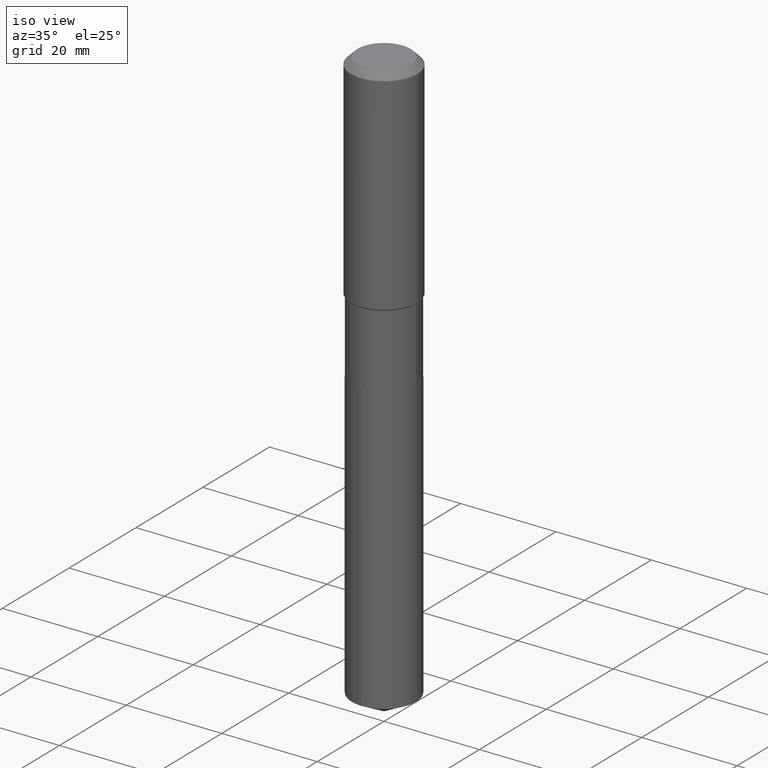
[diagram: clean part render]
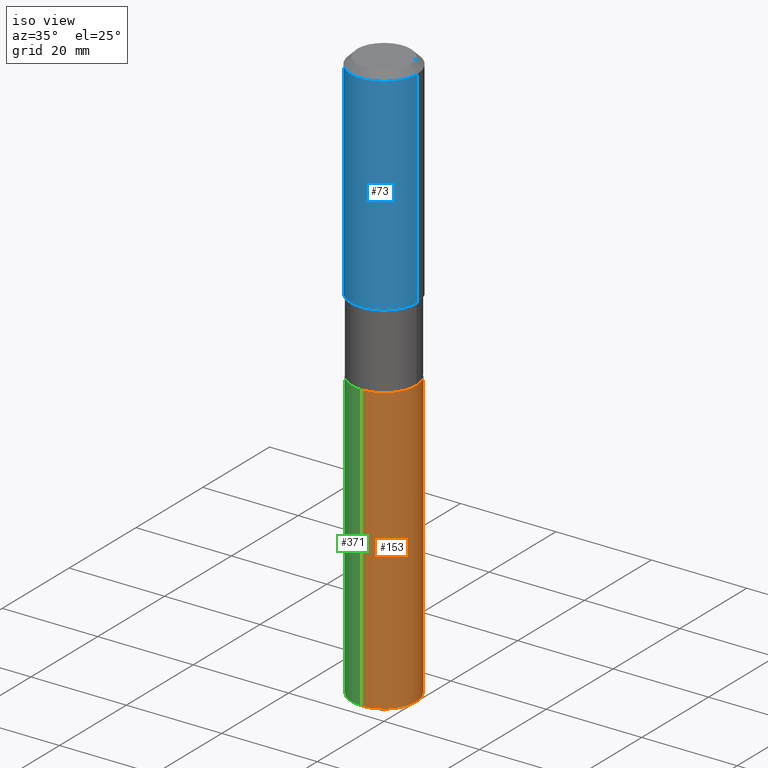
[diagram: same view with three faces highlighted in distinct colors, each labeled with its STEP entity id]
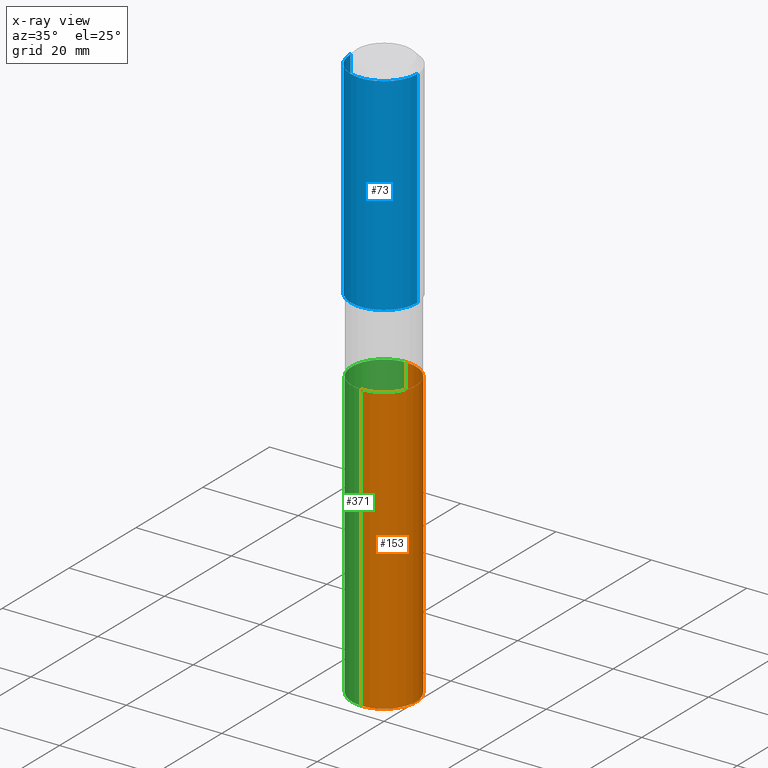
[diagram: x-ray of the same camera — body ghosted, the three highlighted faces saturated]
A machine part, iso view with three faces highlighted in distinct colors.
The next image is the same camera in x-ray (body ghosted, the three faces saturated) — at least one of them is partly hidden behind the body in this view.
Their STEP definitions:

[orange] entity #153 — the highlighted cylindrical surface (partial cylindrical patch) has radius 6.75 mm, axis along (-0, 0, 1).
#20 = DIRECTION ( 'NONE',  ( -6.982962677686266711E-15, -1.000000000000000000, 3.083930002255048040E-15 ) ) ;
#36 = EDGE_CURVE ( 'NONE', #176, #209, #388, .T. ) ;
#52 = DIRECTION ( 'NONE',  ( -2.445196029455757916E-29, 3.491871970645102957E-15, 1.000000000000000000 ) ) ;
#54 = ORIENTED_EDGE ( 'NONE', *, *, #395, .T. ) ;
#61 = CARTESIAN_POINT ( 'NONE',  ( 5.824862149452375369E-29, -8.316359400990487656E-15, -2.381899999999999462 ) ) ;
#85 = AXIS2_PLACEMENT_3D ( 'NONE', #348, #363, #20 ) ;
#88 = DIRECTION ( 'NONE',  ( -2.445196029455757916E-29, 3.491871970645102957E-15, 1.000000000000000000 ) ) ;
#94 = CARTESIAN_POINT ( 'NONE',  ( 1.888267320282524127E-15, 0.2657499999999916596, -2.381900000000000350 ) ) ;
#118 = CYLINDRICAL_SURFACE ( 'NONE', #85, 0.2657499999999999862 ) ;
#119 = AXIS2_PLACEMENT_3D ( 'NONE', #194, #253, #392 ) ;
#150 = FACE_OUTER_BOUND ( 'NONE', #456, .T. ) ;
#153 = ADVANCED_FACE ( 'NONE', ( #150 ), #118, .T. ) ;
#168 = DIRECTION ( 'NONE',  ( -2.445196029455757916E-29, 3.491871970645102957E-15, 1.000000000000000000 ) ) ;
#175 = CARTESIAN_POINT ( 'NONE',  ( 1.888267320282582503E-15, 0.2657499999999916596, -2.381900000000000350 ) ) ;
#176 = VERTEX_POINT ( 'NONE', #278 ) ;
#186 = VECTOR ( 'NONE', #168, 39.37007874015748143 ) ;
#194 = CARTESIAN_POINT ( 'NONE',  ( 1.159234166810088116E-28, -1.655263159750675683E-14, -4.740598218535962971 ) ) ;
#202 = CARTESIAN_POINT ( 'NONE',  ( -1.855722331595066971E-15, -0.2657500000000083129, -2.381899999999998574 ) ) ;
#209 = VERTEX_POINT ( 'NONE', #355 ) ;
#232 = EDGE_CURVE ( 'NONE', #287, #242, #314, .T. ) ;
#240 = ORIENTED_EDGE ( 'NONE', *, *, #352, .F. ) ;
#242 = VERTEX_POINT ( 'NONE', #175 ) ;
#253 = DIRECTION ( 'NONE',  ( -2.445196029455757916E-29, 3.491871970645102957E-15, 1.000000000000000000 ) ) ;
#271 = CARTESIAN_POINT ( 'NONE',  ( -1.855722331595066971E-15, -0.2657500000000083129, -2.381899999999998574 ) ) ;
#278 = CARTESIAN_POINT ( 'NONE',  ( -1.855722331595009384E-15, -0.2657500000000165286, -4.740598218535962083 ) ) ;
#287 = VERTEX_POINT ( 'NONE', #271 ) ;
#303 = VECTOR ( 'NONE', #88, 39.37007874015748143 ) ;
#314 = CIRCLE ( 'NONE', #477, 0.2657499999999999862 ) ;
#327 = ORIENTED_EDGE ( 'NONE', *, *, #232, .F. ) ;
#330 = DIRECTION ( 'NONE',  ( -6.982962677686266711E-15, -1.000000000000000000, 3.083930002255048040E-15 ) ) ;
#344 = ORIENTED_EDGE ( 'NONE', *, *, #36, .T. ) ;
#348 = CARTESIAN_POINT ( 'NONE',  ( 5.824862149452375369E-29, -8.316359400990487656E-15, -2.381899999999999462 ) ) ;
#352 = EDGE_CURVE ( 'NONE', #176, #287, #436, .T. ) ;
#355 = CARTESIAN_POINT ( 'NONE',  ( 1.888267320282582109E-15, 0.2657499999999834994, -4.740598218535963859 ) ) ;
#363 = DIRECTION ( 'NONE',  ( -2.445196029455757916E-29, 3.491871970645102957E-15, 1.000000000000000000 ) ) ;
#388 = CIRCLE ( 'NONE', #119, 0.2657499999999999862 ) ;
#392 = DIRECTION ( 'NONE',  ( -6.982962677686266711E-15, -1.000000000000000000, 4.111906669673397387E-15 ) ) ;
#395 = EDGE_CURVE ( 'NONE', #209, #242, #408, .T. ) ;
#408 = LINE ( 'NONE', #94, #186 ) ;
#436 = LINE ( 'NONE', #202, #303 ) ;
#456 = EDGE_LOOP ( 'NONE', ( #344, #54, #327, #240 ) ) ;
#477 = AXIS2_PLACEMENT_3D ( 'NONE', #61, #52, #330 ) ;

[blue] entity #73 — the highlighted cylindrical surface (partial cylindrical patch) has radius 7.0002 mm, axis along (-0, 0, 1).
#1 = DIRECTION ( 'NONE',  ( -2.445468806185136877E-29, 3.491481338843145188E-15, 1.000000000000000000 ) ) ;
#3 = DIRECTION ( 'NONE',  ( -2.445468806185136597E-29, 3.491481338843145583E-15, 1.000000000000000000 ) ) ;
#13 = EDGE_CURVE ( 'NONE', #464, #216, #399, .T. ) ;
#23 = EDGE_CURVE ( 'NONE', #74, #302, #382, .T. ) ;
#27 = EDGE_CURVE ( 'NONE', #464, #74, #55, .T. ) ;
#48 = CARTESIAN_POINT ( 'NONE',  ( 0.000000000000000000, 0.000000000000000000, 0.000000000000000000 ) ) ;
#49 = DIRECTION ( 'NONE',  ( -2.445468806185136597E-29, 3.491481338843145583E-15, 1.000000000000000000 ) ) ;
#55 = CIRCLE ( 'NONE', #324, 0.2756000000000002337 ) ;
#72 = ORIENTED_EDGE ( 'NONE', *, *, #13, .F. ) ;
#73 = ADVANCED_FACE ( 'NONE', ( #205 ), #86, .T. ) ;
#74 = VERTEX_POINT ( 'NONE', #410 ) ;
#78 = CARTESIAN_POINT ( 'NONE',  ( 4.306103747371095774E-29, -6.147974915501949326E-15, -1.760849999999999138 ) ) ;
#86 = CYLINDRICAL_SURFACE ( 'NONE', #156, 0.2756000000000001227 ) ;
#91 = DIRECTION ( 'NONE',  ( 1.000000000000000000, -6.982962677686267499E-15, 4.876176775795935793E-29 ) ) ;
#156 = AXIS2_PLACEMENT_3D ( 'NONE', #48, #200, #91 ) ;
#157 = AXIS2_PLACEMENT_3D ( 'NONE', #438, #49, #164 ) ;
#164 = DIRECTION ( 'NONE',  ( 1.000000000000000000, -6.982962677686265922E-15, 0.000000000000000000 ) ) ;
#181 = EDGE_CURVE ( 'NONE', #216, #302, #465, .T. ) ;
#200 = DIRECTION ( 'NONE',  ( -2.445468806185136597E-29, 3.491481338843145583E-15, 1.000000000000000000 ) ) ;
#205 = FACE_OUTER_BOUND ( 'NONE', #446, .T. ) ;
#216 = VERTEX_POINT ( 'NONE', #476 ) ;
#233 = VECTOR ( 'NONE', #346, 39.37007874015748143 ) ;
#280 = VECTOR ( 'NONE', #1, 39.37007874015748143 ) ;
#297 = ORIENTED_EDGE ( 'NONE', *, *, #23, .T. ) ;
#302 = VERTEX_POINT ( 'NONE', #343 ) ;
#311 = DIRECTION ( 'NONE',  ( 1.000000000000000000, -6.982962677686267499E-15, 0.000000000000000000 ) ) ;
#324 = AXIS2_PLACEMENT_3D ( 'NONE', #78, #3, #311 ) ;
#342 = CARTESIAN_POINT ( 'NONE',  ( -0.2756000000000001227, 1.958255779754836984E-15, -1.355658510874252567E-29 ) ) ;
#343 = CARTESIAN_POINT ( 'NONE',  ( 0.2756000000000000116, -2.116954965367370658E-15, -0.05512000000000035621 ) ) ;
#346 = DIRECTION ( 'NONE',  ( -2.445468806185136877E-29, 3.491481338843145188E-15, 1.000000000000000000 ) ) ;
#351 = CARTESIAN_POINT ( 'NONE',  ( -0.2756000000000002337, -4.189719135747111948E-15, -1.760849999999999138 ) ) ;
#361 = ORIENTED_EDGE ( 'NONE', *, *, #181, .F. ) ;
#382 = LINE ( 'NONE', #429, #233 ) ;
#391 = ORIENTED_EDGE ( 'NONE', *, *, #27, .T. ) ;
#399 = LINE ( 'NONE', #342, #280 ) ;
#410 = CARTESIAN_POINT ( 'NONE',  ( 0.2756000000000002337, -8.072479429472285858E-15, -1.760849999999999138 ) ) ;
#429 = CARTESIAN_POINT ( 'NONE',  ( 0.2756000000000001227, -1.924504513970336137E-15, 1.343874319409360548E-29 ) ) ;
#438 = CARTESIAN_POINT ( 'NONE',  ( 1.347942405969256063E-30, -1.924504513970354330E-16, -0.05512000000000035621 ) ) ;
#446 = EDGE_LOOP ( 'NONE', ( #72, #391, #297, #361 ) ) ;
#464 = VERTEX_POINT ( 'NONE', #351 ) ;
#465 = CIRCLE ( 'NONE', #157, 0.2756000000000000116 ) ;
#476 = CARTESIAN_POINT ( 'NONE',  ( -0.2756000000000000116, -1.211956903694655137E-15, -0.05512000000000035621 ) ) ;

[green] entity #371 — the highlighted cylindrical surface (partial cylindrical patch) has radius 6.75 mm, axis along (-0, 0, 1).
#7 = CARTESIAN_POINT ( 'NONE',  ( 5.824862149452375369E-29, -8.316359400990487656E-15, -2.381899999999999462 ) ) ;
#35 = AXIS2_PLACEMENT_3D ( 'NONE', #134, #474, #366 ) ;
#88 = DIRECTION ( 'NONE',  ( -2.445196029455757916E-29, 3.491871970645102957E-15, 1.000000000000000000 ) ) ;
#94 = CARTESIAN_POINT ( 'NONE',  ( 1.888267320282524127E-15, 0.2657499999999916596, -2.381900000000000350 ) ) ;
#110 = CIRCLE ( 'NONE', #340, 0.2657499999999999862 ) ;
#121 = DIRECTION ( 'NONE',  ( -6.982962677686266711E-15, -1.000000000000000000, 3.083930002255048040E-15 ) ) ;
#134 = CARTESIAN_POINT ( 'NONE',  ( 1.159234166810088116E-28, -1.655263159750675683E-14, -4.740598218535962971 ) ) ;
#161 = DIRECTION ( 'NONE',  ( -2.445196029455757916E-29, 3.491871970645102957E-15, 1.000000000000000000 ) ) ;
#165 = ORIENTED_EDGE ( 'NONE', *, *, #471, .F. ) ;
#168 = DIRECTION ( 'NONE',  ( -2.445196029455757916E-29, 3.491871970645102957E-15, 1.000000000000000000 ) ) ;
#175 = CARTESIAN_POINT ( 'NONE',  ( 1.888267320282582503E-15, 0.2657499999999916596, -2.381900000000000350 ) ) ;
#176 = VERTEX_POINT ( 'NONE', #278 ) ;
#184 = CYLINDRICAL_SURFACE ( 'NONE', #347, 0.2657499999999999862 ) ;
#186 = VECTOR ( 'NONE', #168, 39.37007874015748143 ) ;
#192 = EDGE_CURVE ( 'NONE', #209, #176, #204, .T. ) ;
#202 = CARTESIAN_POINT ( 'NONE',  ( -1.855722331595066971E-15, -0.2657500000000083129, -2.381899999999998574 ) ) ;
#204 = CIRCLE ( 'NONE', #35, 0.2657499999999999862 ) ;
#209 = VERTEX_POINT ( 'NONE', #355 ) ;
#218 = FACE_OUTER_BOUND ( 'NONE', #479, .T. ) ;
#242 = VERTEX_POINT ( 'NONE', #175 ) ;
#244 = ORIENTED_EDGE ( 'NONE', *, *, #192, .T. ) ;
#271 = CARTESIAN_POINT ( 'NONE',  ( -1.855722331595066971E-15, -0.2657500000000083129, -2.381899999999998574 ) ) ;
#278 = CARTESIAN_POINT ( 'NONE',  ( -1.855722331595009384E-15, -0.2657500000000165286, -4.740598218535962083 ) ) ;
#287 = VERTEX_POINT ( 'NONE', #271 ) ;
#303 = VECTOR ( 'NONE', #88, 39.37007874015748143 ) ;
#307 = CARTESIAN_POINT ( 'NONE',  ( 5.824862149452375369E-29, -8.316359400990487656E-15, -2.381899999999999462 ) ) ;
#340 = AXIS2_PLACEMENT_3D ( 'NONE', #7, #463, #121 ) ;
#347 = AXIS2_PLACEMENT_3D ( 'NONE', #307, #161, #401 ) ;
#352 = EDGE_CURVE ( 'NONE', #176, #287, #436, .T. ) ;
#355 = CARTESIAN_POINT ( 'NONE',  ( 1.888267320282582109E-15, 0.2657499999999834994, -4.740598218535963859 ) ) ;
#366 = DIRECTION ( 'NONE',  ( -6.982962677686266711E-15, -1.000000000000000000, 4.111906669673397387E-15 ) ) ;
#371 = ADVANCED_FACE ( 'NONE', ( #218 ), #184, .T. ) ;
#376 = ORIENTED_EDGE ( 'NONE', *, *, #395, .F. ) ;
#395 = EDGE_CURVE ( 'NONE', #209, #242, #408, .T. ) ;
#401 = DIRECTION ( 'NONE',  ( -6.982962677686266711E-15, -1.000000000000000000, 3.083930002255048040E-15 ) ) ;
#408 = LINE ( 'NONE', #94, #186 ) ;
#417 = ORIENTED_EDGE ( 'NONE', *, *, #352, .T. ) ;
#436 = LINE ( 'NONE', #202, #303 ) ;
#463 = DIRECTION ( 'NONE',  ( -2.445196029455757916E-29, 3.491871970645102957E-15, 1.000000000000000000 ) ) ;
#471 = EDGE_CURVE ( 'NONE', #242, #287, #110, .T. ) ;
#474 = DIRECTION ( 'NONE',  ( -2.445196029455757916E-29, 3.491871970645102957E-15, 1.000000000000000000 ) ) ;
#479 = EDGE_LOOP ( 'NONE', ( #376, #244, #417, #165 ) ) ;